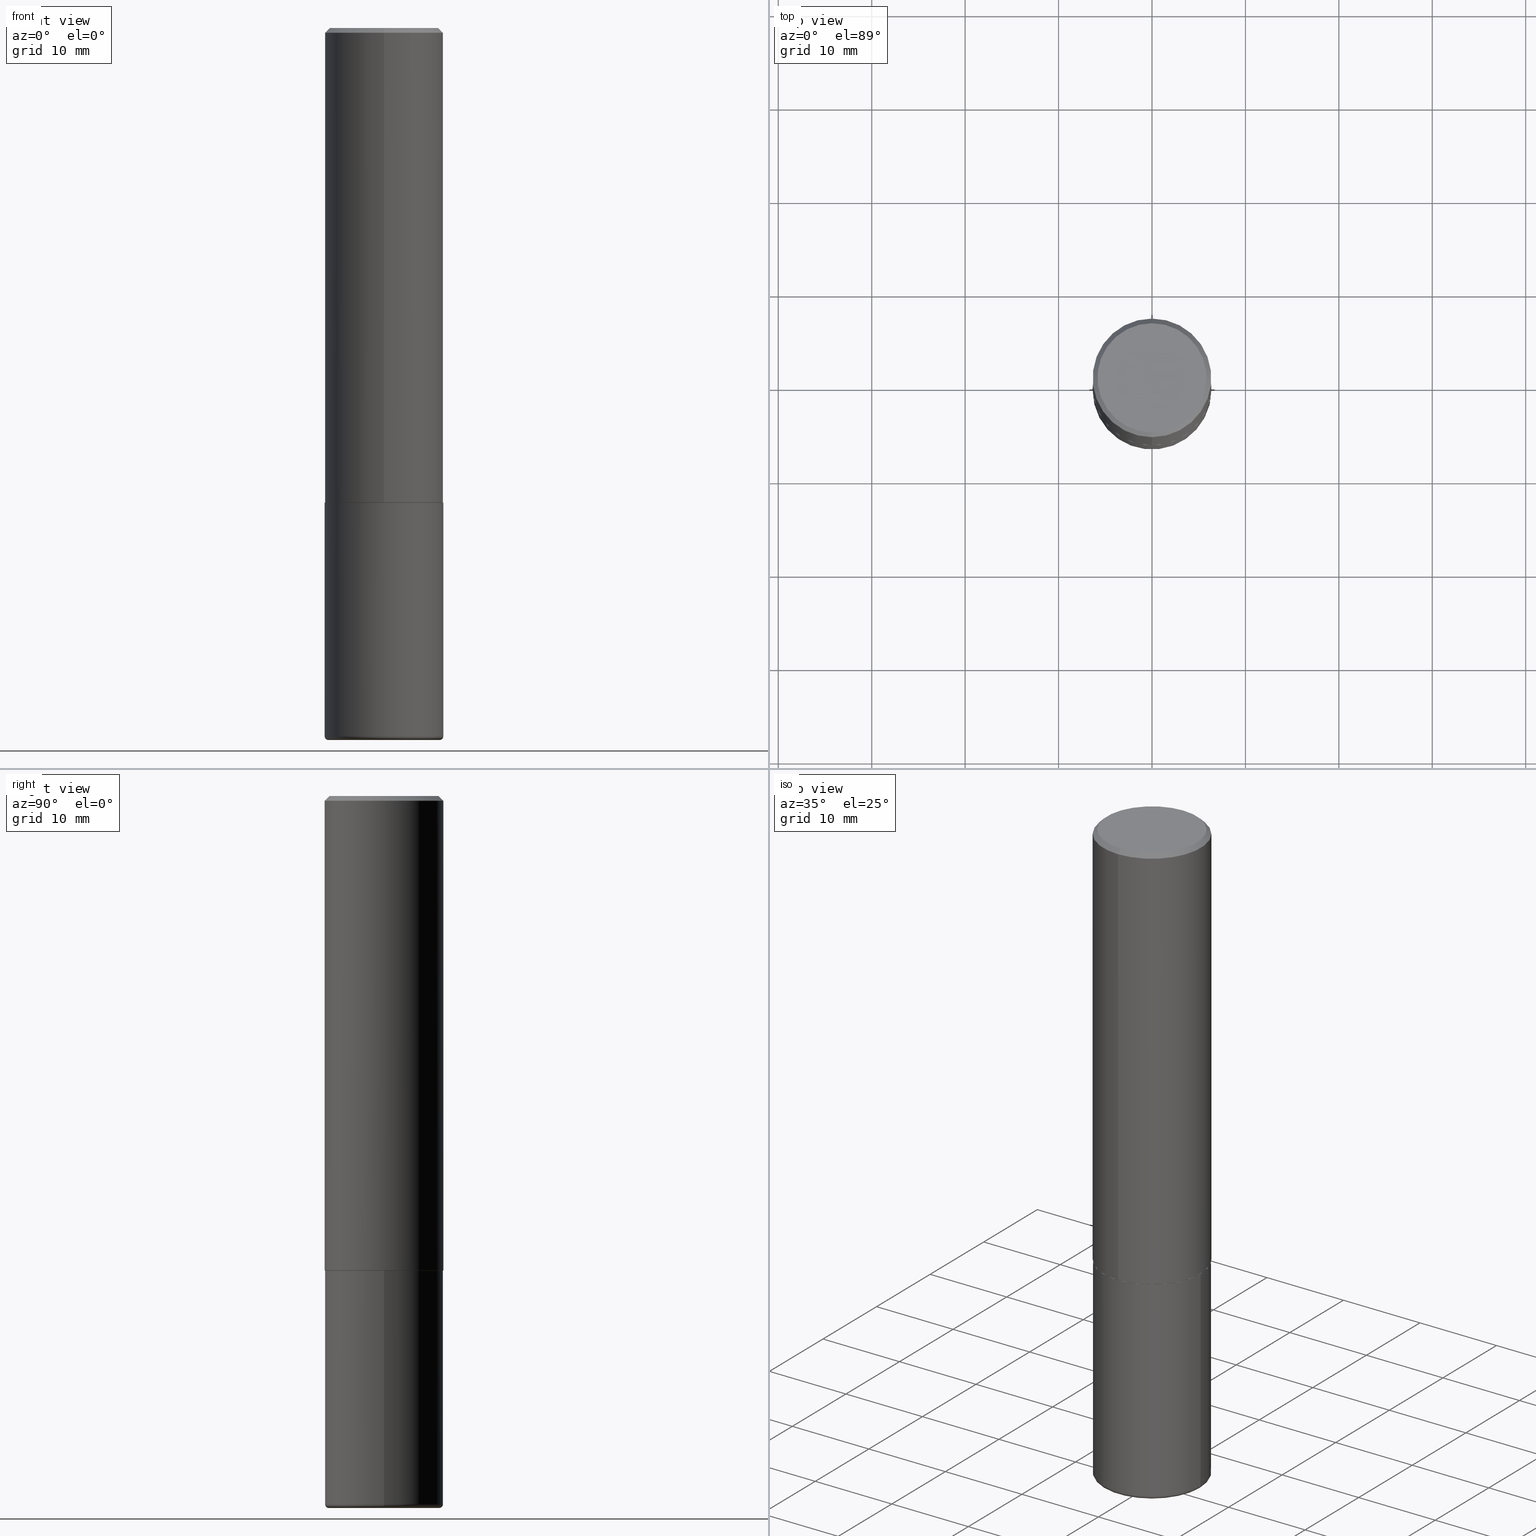
[diagram: canonical four-view strip — front | top / right | iso, engineering-drawing reading convention]
A machine part, canonical four-view strip (front | top / right | iso — engineering-drawing reading convention). The complete STEP part file that produces these views, byte-faithful:
ISO-10303-21;
HEADER;
FILE_DESCRIPTION (( 'STEP AP203' ),
    '1' );
FILE_NAME ('38174.STEP',
    '2024-03-02T16:56:12',
    ( '' ),
    ( '' ),
    'SwSTEP 2.0',
    'SolidWorks 2023',
    '' );
FILE_SCHEMA (( 'CONFIG_CONTROL_DESIGN' ));
ENDSEC;

DATA;
#1 = MANIFOLD_SOLID_BREP ( 'Body-Move/Copy2[1]', #149 ) ;
#2 = ADVANCED_FACE ( 'NONE', ( #15 ), #23, .T. ) ;
#3 = DIRECTION ( 'NONE',  ( -6.982962677686265922E-15, -1.000000000000000000, 3.483106191921935554E-15 ) ) ;
#4 = DIRECTION ( 'NONE',  ( 2.438088387897960049E-29, -3.491481338843145188E-15, -1.000000000000000000 ) ) ;
#5 = AXIS2_PLACEMENT_3D ( 'NONE', #352, #163, #3 ) ;
#6 = PERSON_AND_ORGANIZATION_ROLE ( 'classification_officer' ) ;
#7 = CARTESIAN_POINT ( 'NONE',  ( -1.646519519465166770E-15, -0.2299999999999998990, 8.535229244571821279E-16 ) ) ;
#8 = EDGE_CURVE ( 'NONE', #100, #45, #131, .T. ) ;
#9 = DIRECTION ( 'NONE',  ( 1.000000000000000000, 0.000000000000000000, 0.000000000000000000 ) ) ;
#10 = ORIENTED_EDGE ( 'NONE', *, *, #116, .F. ) ;
#11 = APPLICATION_PROTOCOL_DEFINITION ( 'international standard', 'config_control_design', 1994, #157 ) ;
#12 = ORIENTED_EDGE ( 'NONE', *, *, #339, .F. ) ;
#13 = APPROVAL ( #321, 'UNSPECIFIED' ) ;
#14 = CARTESIAN_POINT ( 'NONE',  ( -1.715124499442882299E-15, -0.2500000000000000555, -0.01999999999999918510 ) ) ;
#15 = FACE_OUTER_BOUND ( 'NONE', #277, .T. ) ;
#16 = EDGE_CURVE ( 'NONE', #184, #366, #210, .T. ) ;
#17 = PLANE ( 'NONE',  #227 ) ;
#18 = DIRECTION ( 'NONE',  ( -2.445468806185136597E-29, 3.491481338843145583E-15, 1.000000000000000000 ) ) ;
#19 = AXIS2_PLACEMENT_3D ( 'NONE', #128, #397, #96 ) ;
#20 = DIRECTION ( 'NONE',  ( -2.446592051190030557E-29, 3.489872788065002235E-15, 1.000000000000000000 ) ) ;
#21 = LENGTH_MEASURE_WITH_UNIT ( LENGTH_MEASURE( 0.02539999999999999897 ), #144 );
#22 = ADVANCED_FACE ( 'NONE', ( #40 ), #137, .T. ) ;
#23 = TOROIDAL_SURFACE ( 'NONE', #118, 0.2349999999999999867, 0.01500000000000012955 ) ;
#24 = VERTEX_POINT ( 'NONE', #209 ) ;
#25 = DIRECTION ( 'NONE',  ( 1.000000000000000000, -6.982962677686266711E-15, 4.883557194083113462E-29 ) ) ;
#26 = VECTOR ( 'NONE', #147, 39.37007874015748143 ) ;
#27 = AXIS2_PLACEMENT_3D ( 'NONE', #243, #375, #215 ) ;
#28 = CYLINDRICAL_SURFACE ( 'NONE', #378, 0.2500000000000000000 ) ;
#29 = CARTESIAN_POINT ( 'NONE',  ( 4.893184102380062236E-29, -6.979745576130006048E-15, -2.000000000000000444 ) ) ;
#30 = DIRECTION ( 'NONE',  ( -6.982962677686265133E-15, -1.000000000000000000, 3.291383124896702687E-15 ) ) ;
#31 = VERTEX_POINT ( 'NONE', #125 ) ;
#32 = PRODUCT_DEFINITION ( 'UNKNOWN', '', #317, #139 ) ;
#33 = ORIENTED_EDGE ( 'NONE', *, *, #77, .F. ) ;
#34 = AXIS2_PLACEMENT_3D ( 'NONE', #119, #251, #35 ) ;
#35 = DIRECTION ( 'NONE',  ( 1.000000000000000000, -6.982962677686266711E-15, 0.000000000000000000 ) ) ;
#36 = EDGE_LOOP ( 'NONE', ( #61, #188 ) ) ;
#37 = DIRECTION ( 'NONE',  ( -2.446592051190030557E-29, 3.489872788065002235E-15, 1.000000000000000000 ) ) ;
#38 = PERSON_AND_ORGANIZATION_ROLE ( 'creator' ) ;
#39 = ORIENTED_EDGE ( 'NONE', *, *, #151, .T. ) ;
#40 = FACE_OUTER_BOUND ( 'NONE', #247, .T. ) ;
#41 = AXIS2_PLACEMENT_3D ( 'NONE', #325, #301, #306 ) ;
#42 = DIRECTION ( 'NONE',  ( 6.982962677686265922E-15, 1.000000000000000000, -3.489872788065001841E-15 ) ) ;
#43 = DIRECTION ( 'NONE',  ( 1.000000000000000000, -6.982962677686266711E-15, 4.876176775795935793E-29 ) ) ;
#44 = APPROVAL_DATE_TIME ( #335, #185 ) ;
#45 = VERTEX_POINT ( 'NONE', #197 ) ;
#46 = FACE_OUTER_BOUND ( 'NONE', #55, .T. ) ;
#47 = AXIS2_PLACEMENT_3D ( 'NONE', #51, #20, #334 ) ;
#48 = DIRECTION ( 'NONE',  ( 2.446592051190030557E-29, -3.489872788065002235E-15, -1.000000000000000000 ) ) ;
#49 = CARTESIAN_POINT ( 'NONE',  ( 1.769251412042698169E-15, 0.2489999999999930325, -2.000000000000001332 ) ) ;
#50 = DIRECTION ( 'NONE',  ( 7.105427357601001859E-15, 1.000000000000000000, -3.491481338843145583E-15 ) ) ;
#51 = CARTESIAN_POINT ( 'NONE',  ( -1.244145472082398885E-45, 1.774676503711654950E-31, 5.085218320223195210E-17 ) ) ;
#52 = ORIENTED_EDGE ( 'NONE', *, *, #377, .T. ) ;
#53 = CIRCLE ( 'NONE', #114, 0.2500000000000002776 ) ;
#54 = AXIS2_PLACEMENT_3D ( 'NONE', #143, #337, #193 ) ;
#55 = EDGE_LOOP ( 'NONE', ( #176, #403, #179, #348 ) ) ;
#56 = DIRECTION ( 'NONE',  ( -2.445468806185136597E-29, 3.491481338843145583E-15, 1.000000000000000000 ) ) ;
#57 = PERSON_AND_ORGANIZATION ( #240, #73 ) ;
#58 = AXIS2_PLACEMENT_3D ( 'NONE', #29, #358, #281 ) ;
#59 = DIMENSIONAL_EXPONENTS ( 1.000000000000000000, 0.000000000000000000, 0.000000000000000000, 0.000000000000000000, 0.000000000000000000, 0.000000000000000000, 0.000000000000000000 ) ;
#60 = EDGE_CURVE ( 'NONE', #155, #122, #357, .T. ) ;
#61 = ORIENTED_EDGE ( 'NONE', *, *, #16, .F. ) ;
#62 = CALENDAR_DATE ( 2024, 2, 3 ) ;
#63 = ORIENTED_EDGE ( 'NONE', *, *, #387, .F. ) ;
#64 = EDGE_CURVE ( 'NONE', #326, #122, #53, .T. ) ;
#65 = CIRCLE ( 'NONE', #349, 0.2500000000000000000 ) ;
#66 = VECTOR ( 'NONE', #406, 39.37007874015748143 ) ;
#67 = PERSON_AND_ORGANIZATION ( #240, #73 ) ;
#68 = EDGE_LOOP ( 'NONE', ( #336, #200, #217, #10 ) ) ;
#69 = PERSON_AND_ORGANIZATION ( #240, #73 ) ;
#70 = ADVANCED_FACE ( 'NONE', ( #320 ), #28, .T. ) ;
#71 = DIRECTION ( 'NONE',  ( -2.445468806185136597E-29, 3.491481338843145583E-15, 1.000000000000000000 ) ) ;
#72 = VECTOR ( 'NONE', #148, 39.37007874015748143 ) ;
#73 = ORGANIZATION ( 'UNSPECIFIED', 'UNSPECIFIED', '' ) ;
#74 = COORDINATED_UNIVERSAL_TIME_OFFSET ( 5, 0, .BEHIND. ) ;
#75 = ORIENTED_EDGE ( 'NONE', *, *, #8, .F. ) ;
#76 = CARTESIAN_POINT ( 'NONE',  ( 1.606081415867840476E-15, 0.2299999999999998990, -7.772446496538342614E-16 ) ) ;
#77 = EDGE_CURVE ( 'NONE', #31, #24, #297, .T. ) ;
#78 = CC_DESIGN_PERSON_AND_ORGANIZATION_ASSIGNMENT ( #99, #182, ( #32 ) ) ;
#79 = AXIS2_PLACEMENT_3D ( 'NONE', #76, #409, #42 ) ;
#80 = ORIENTED_EDGE ( 'NONE', *, *, #248, .T. ) ;
#81 = CARTESIAN_POINT ( 'NONE',  ( -1.745740669421519346E-15, -0.2500000000000072164, -1.998999999999999444 ) ) ;
#82 = EDGE_CURVE ( 'NONE', #342, #326, #158, .T. ) ;
#83 = DIRECTION ( 'NONE',  ( -2.445468806185136597E-29, 3.491481338843145583E-15, 1.000000000000000000 ) ) ;
#84 = ORIENTED_EDGE ( 'NONE', *, *, #381, .T. ) ;
#85 = FACE_OUTER_BOUND ( 'NONE', #244, .T. ) ;
#86 = EDGE_CURVE ( 'NONE', #326, #322, #284, .T. ) ;
#87 = AXIS2_PLACEMENT_3D ( 'NONE', #109, #275, #412 ) ;
#88 = PERSON_AND_ORGANIZATION ( #240, #73 ) ;
#89 = EDGE_CURVE ( 'NONE', #373, #127, #65, .T. ) ;
#90 = CARTESIAN_POINT ( 'NONE',  ( -0.2349999999999999867, -8.752296367410553538E-15, -2.984999999999999876 ) ) ;
#91 = CARTESIAN_POINT ( 'NONE',  ( 0.2500000000000000000, -1.745740669421566678E-15, 1.219044193948983948E-29 ) ) ;
#92 = FACE_OUTER_BOUND ( 'NONE', #36, .T. ) ;
#93 = CC_DESIGN_SECURITY_CLASSIFICATION ( #262, ( #317 ) ) ;
#94 = DATE_TIME_ROLE ( 'classification_date' ) ;
#95 = ORIENTED_EDGE ( 'NONE', *, *, #230, .F. ) ;
#96 = DIRECTION ( 'NONE',  ( -6.982962677686265922E-15, -1.000000000000000000, 3.483106191921935554E-15 ) ) ;
#97 = CARTESIAN_POINT ( 'NONE',  ( 4.893184102380074708E-31, -6.979745576130022269E-17, -0.02000000000000005593 ) ) ;
#98 = CC_DESIGN_PERSON_AND_ORGANIZATION_ASSIGNMENT ( #69, #38, ( #317 ) ) ;
#99 = PERSON_AND_ORGANIZATION ( #240, #73 ) ;
#100 = VERTEX_POINT ( 'NONE', #7 ) ;
#101 = CARTESIAN_POINT ( 'NONE',  ( 4.893184102380062236E-29, -6.979745576130006048E-15, -2.000000000000000444 ) ) ;
#102 = DIRECTION ( 'NONE',  ( -2.446592051190030557E-29, 3.489872788065002235E-15, 1.000000000000000000 ) ) ;
#103 = CONICAL_SURFACE ( 'NONE', #54, 0.2489999999999999991, 0.7853981633974141952 ) ;
#104 = ORIENTED_EDGE ( 'NONE', *, *, #60, .F. ) ;
#105 = ADVANCED_FACE ( 'NONE', ( #307 ), #112, .T. ) ;
#106 = DIRECTION ( 'NONE',  ( 1.000000000000000000, -6.982962677686271444E-15, 0.000000000000000000 ) ) ;
#107 = AXIS2_PLACEMENT_3D ( 'NONE', #302, #102, #408 ) ;
#108 = VECTOR ( 'NONE', #303, 39.37007874015748143 ) ;
#109 = CARTESIAN_POINT ( 'NONE',  ( 0.000000000000000000, 0.000000000000000000, 0.000000000000000000 ) ) ;
#110 = CC_DESIGN_DATE_AND_TIME_ASSIGNMENT ( #190, #385, ( #32 ) ) ;
#111 = FACE_OUTER_BOUND ( 'NONE', #296, .T. ) ;
#112 = CYLINDRICAL_SURFACE ( 'NONE', #416, 0.2500000000000000000 ) ;
#113 = ORIENTED_EDGE ( 'NONE', *, *, #173, .F. ) ;
#114 = AXIS2_PLACEMENT_3D ( 'NONE', #393, #384, #171 ) ;
#115 = LOCAL_TIME ( 11, 56, 12.00000000000000000, #74 ) ;
#116 = EDGE_CURVE ( 'NONE', #122, #45, #338, .T. ) ;
#117 = CARTESIAN_POINT ( 'NONE',  ( -1.738757706743831162E-15, -0.2490000000000069658, -1.999999999999999778 ) ) ;
#118 = AXIS2_PLACEMENT_3D ( 'NONE', #364, #71, #206 ) ;
#119 = CARTESIAN_POINT ( 'NONE',  ( 4.890937612370273754E-29, -6.982962677686291954E-15, -2.000000000000000444 ) ) ;
#120 = LOCAL_TIME ( 11, 56, 12.00000000000000000, #359 ) ;
#121 = ORIENTED_EDGE ( 'NONE', *, *, #129, .F. ) ;
#122 = VERTEX_POINT ( 'NONE', #81 ) ;
#123 = DIRECTION ( 'NONE',  ( -4.937700262164378437E-15, -0.7071067811865208164, 0.7071067811865739960 ) ) ;
#124 = CARTESIAN_POINT ( 'NONE',  ( 0.000000000000000000, 0.000000000000000000, 0.000000000000000000 ) ) ;
#125 = CARTESIAN_POINT ( 'NONE',  ( 0.2500000000000000555, -1.216781246586835477E-14, -2.984999999999999876 ) ) ;
#126 = AXIS2_PLACEMENT_3D ( 'NONE', #333, #216, #223 ) ;
#127 = VERTEX_POINT ( 'NONE', #343 ) ;
#128 = CARTESIAN_POINT ( 'NONE',  ( 4.893184102380074708E-31, -6.979745576130022269E-17, -0.02000000000000005593 ) ) ;
#129 = EDGE_CURVE ( 'NONE', #342, #155, #180, .T. ) ;
#130 = MANIFOLD_SOLID_BREP ( 'Body-Move/Copy2[2]', #316 ) ;
#131 = LINE ( 'NONE', #14, #234 ) ;
#132 = FACE_OUTER_BOUND ( 'NONE', #345, .T. ) ;
#133 = DIRECTION ( 'NONE',  ( 1.000000000000000000, -6.982962677686270655E-15, 0.000000000000000000 ) ) ;
#134 = EDGE_CURVE ( 'NONE', #164, #100, #279, .T. ) ;
#135 = CARTESIAN_POINT ( 'NONE',  ( 1.776356839400276497E-15, 0.2499999999999933109, -1.999000000000000998 ) ) ;
#136 = LINE ( 'NONE', #142, #66 ) ;
#137 = CONICAL_SURFACE ( 'NONE', #107, 0.2489999999999999991, 0.7853981633974141952 ) ;
#138 = ADVANCED_FACE ( 'NONE', ( #92 ), #228, .T. ) ;
#139 = DESIGN_CONTEXT ( 'detailed design', #157, 'design' ) ;
#140 = DIRECTION ( 'NONE',  ( 2.438088387897960049E-29, -3.491481338843145188E-15, -1.000000000000000000 ) ) ;
#141 = DIRECTION ( 'NONE',  ( 1.000000000000000000, -6.982962677686271444E-15, 0.000000000000000000 ) ) ;
#142 = CARTESIAN_POINT ( 'NONE',  ( 1.745740669421566875E-15, 0.2499999999999999167, -0.02000000000000092676 ) ) ;
#143 = CARTESIAN_POINT ( 'NONE',  ( 4.893184102380062236E-29, -6.979745576130006048E-15, -2.000000000000000444 ) ) ;
#144 =( LENGTH_UNIT ( ) NAMED_UNIT ( * ) SI_UNIT ( $, .METRE. ) );
#145 =( CONVERSION_BASED_UNIT ( 'INCH', #21 ) LENGTH_UNIT ( ) NAMED_UNIT ( #59 ) );
#146 = ADVANCED_BREP_SHAPE_REPRESENTATION ( '38174', ( #1, #130, #252 ), #269 ) ;
#147 = DIRECTION ( 'NONE',  ( -2.446592051190030838E-29, 3.489872788065001841E-15, 1.000000000000000000 ) ) ;
#148 = DIRECTION ( 'NONE',  ( -2.446592051190030838E-29, 3.489872788065001841E-15, 1.000000000000000000 ) ) ;
#149 = CLOSED_SHELL ( 'NONE', ( #105, #2, #362, #70, #292, #138 ) ) ;
#150 = CIRCLE ( 'NONE', #165, 0.2500000000000002776 ) ;
#151 = EDGE_CURVE ( 'NONE', #366, #24, #261, .T. ) ;
#152 = UNCERTAINTY_MEASURE_WITH_UNIT (LENGTH_MEASURE( 1.000000000000000082E-05 ), #145, 'distance_accuracy_value', 'NONE');
#153 = EDGE_LOOP ( 'NONE', ( #390, #52, #255, #95 ) ) ;
#154 = DIRECTION ( 'NONE',  ( 1.000000000000000000, -6.982962677686266711E-15, 0.000000000000000000 ) ) ;
#155 = VERTEX_POINT ( 'NONE', #191 ) ;
#156 = PRODUCT_DEFINITION_SHAPE ( 'NONE', 'NONE',  #32 ) ;
#157 = APPLICATION_CONTEXT ( 'configuration controlled 3d designs of mechanical parts and assemblies' ) ;
#158 = LINE ( 'NONE', #49, #249 ) ;
#159 = CALENDAR_DATE ( 2024, 2, 3 ) ;
#160 = AXIS2_PLACEMENT_3D ( 'NONE', #314, #56, #25 ) ;
#161 = DIRECTION ( 'NONE',  ( -2.445468806185136597E-29, 3.491481338843145583E-15, 1.000000000000000000 ) ) ;
#162 = EDGE_LOOP ( 'NONE', ( #413, #203 ) ) ;
#163 = DIRECTION ( 'NONE',  ( -2.446592051190030557E-29, 3.489872788065002235E-15, 1.000000000000000000 ) ) ;
#164 = VERTEX_POINT ( 'NONE', #285 ) ;
#165 = AXIS2_PLACEMENT_3D ( 'NONE', #256, #37, #238 ) ;
#166 = DIRECTION ( 'NONE',  ( -6.982962677686265922E-15, -1.000000000000000000, 3.489872788065002235E-15 ) ) ;
#167 = COORDINATED_UNIVERSAL_TIME_OFFSET ( 5, 0, .BEHIND. ) ;
#168 = ORIENTED_EDGE ( 'NONE', *, *, #89, .F. ) ;
#169 = EDGE_LOOP ( 'NONE', ( #229, #294, #268, #172 ) ) ;
#170 = PERSON_AND_ORGANIZATION_ROLE ( 'design_owner' ) ;
#171 = DIRECTION ( 'NONE',  ( -6.982962677686265922E-15, -1.000000000000000000, 3.278217592397112312E-15 ) ) ;
#172 = ORIENTED_EDGE ( 'NONE', *, *, #356, .F. ) ;
#173 = EDGE_CURVE ( 'NONE', #31, #373, #389, .T. ) ;
#174 = CARTESIAN_POINT ( 'NONE',  ( 4.890937612370273754E-29, -6.982962677686291954E-15, -2.000000000000000444 ) ) ;
#175 = CIRCLE ( 'NONE', #47, 0.2299999999999998990 ) ;
#176 = ORIENTED_EDGE ( 'NONE', *, *, #82, .F. ) ;
#177 = EDGE_CURVE ( 'NONE', #24, #127, #372, .T. ) ;
#178 = ORIENTED_EDGE ( 'NONE', *, *, #214, .T. ) ;
#179 = ORIENTED_EDGE ( 'NONE', *, *, #60, .T. ) ;
#180 = CIRCLE ( 'NONE', #221, 0.2489999999999999991 ) ;
#181 = AXIS2_PLACEMENT_3D ( 'NONE', #383, #220, #106 ) ;
#182 = PERSON_AND_ORGANIZATION_ROLE ( 'creator' ) ;
#183 = CALENDAR_DATE ( 2024, 2, 3 ) ;
#184 = VERTEX_POINT ( 'NONE', #400 ) ;
#185 = APPROVAL ( #401, 'UNSPECIFIED' ) ;
#186 = VECTOR ( 'NONE', #123, 39.37007874015748854 ) ;
#187 = CC_DESIGN_APPROVAL ( #192, ( #317 ) ) ;
#188 = ORIENTED_EDGE ( 'NONE', *, *, #377, .F. ) ;
#189 = AXIS2_PLACEMENT_3D ( 'NONE', #211, #18, #133 ) ;
#190 = DATE_AND_TIME ( #159, #115 ) ;
#191 = CARTESIAN_POINT ( 'NONE',  ( -1.738757706743831162E-15, -0.2490000000000069658, -1.999999999999999778 ) ) ;
#192 = APPROVAL ( #353, 'UNSPECIFIED' ) ;
#193 = DIRECTION ( 'NONE',  ( -6.982962677686265133E-15, -1.000000000000000000, 3.291383124896702687E-15 ) ) ;
#194 = DATE_AND_TIME ( #62, #120 ) ;
#195 = AXIS2_PLACEMENT_3D ( 'NONE', #396, #219, #282 ) ;
#196 = APPROVAL_PERSON_ORGANIZATION ( #266, #185, #270 ) ;
#197 = CARTESIAN_POINT ( 'NONE',  ( -1.715124499442882299E-15, -0.2500000000000000555, -0.01999999999999918510 ) ) ;
#198 = CARTESIAN_POINT ( 'NONE',  ( 7.336406418555409790E-29, -1.047444401652943635E-14, -3.000000000000000444 ) ) ;
#199 = FACE_OUTER_BOUND ( 'NONE', #68, .T. ) ;
#200 = ORIENTED_EDGE ( 'NONE', *, *, #86, .T. ) ;
#201 = ORIENTED_EDGE ( 'NONE', *, *, #16, .T. ) ;
#202 = AXIS2_PLACEMENT_3D ( 'NONE', #90, #50, #218 ) ;
#203 = ORIENTED_EDGE ( 'NONE', *, *, #356, .T. ) ;
#204 = PRODUCT_RELATED_PRODUCT_CATEGORY ( 'detail', '', ( #414 ) ) ;
#205 = PLANE ( 'NONE',  #126 ) ;
#206 = DIRECTION ( 'NONE',  ( 1.000000000000000000, -6.982962677686266711E-15, 4.883557194083113462E-29 ) ) ;
#207 = FACE_OUTER_BOUND ( 'NONE', #153, .T. ) ;
#208 = APPROVAL_DATE_TIME ( #391, #13 ) ;
#209 = CARTESIAN_POINT ( 'NONE',  ( -0.2500000000000000555, -8.645714957046537626E-15, -2.984999999999999876 ) ) ;
#210 = CIRCLE ( 'NONE', #404, 0.2349999999999999867 ) ;
#211 = CARTESIAN_POINT ( 'NONE',  ( 7.299724386462632472E-29, -1.042207179644678967E-14, -2.984999999999999876 ) ) ;
#212 = CARTESIAN_POINT ( 'NONE',  ( 0.000000000000000000, 0.000000000000000000, 0.000000000000000000 ) ) ;
#213 = COORDINATED_UNIVERSAL_TIME_OFFSET ( 5, 0, .BEHIND. ) ;
#214 = EDGE_CURVE ( 'NONE', #100, #164, #175, .T. ) ;
#215 = DIRECTION ( 'NONE',  ( 6.982962677686265922E-15, 1.000000000000000000, -3.483106191921935554E-15 ) ) ;
#216 = DIRECTION ( 'NONE',  ( -2.446592051190030277E-29, 3.489872788065001841E-15, 1.000000000000000000 ) ) ;
#217 = ORIENTED_EDGE ( 'NONE', *, *, #347, .F. ) ;
#218 = DIRECTION ( 'NONE',  ( -1.000000000000000000, 7.105427357600986081E-15, 0.000000000000000000 ) ) ;
#219 = DIRECTION ( 'NONE',  ( -2.445468806185136597E-29, 3.491481338843145583E-15, 1.000000000000000000 ) ) ;
#220 = DIRECTION ( 'NONE',  ( -2.445468806185136597E-29, 3.491481338843145583E-15, 1.000000000000000000 ) ) ;
#221 = AXIS2_PLACEMENT_3D ( 'NONE', #101, #233, #30 ) ;
#222 = CIRCLE ( 'NONE', #323, 0.01500000000000014690 ) ;
#223 = DIRECTION ( 'NONE',  ( -6.982962677686265922E-15, -1.000000000000000000, 3.489872788065001841E-15 ) ) ;
#224 = ORIENTED_EDGE ( 'NONE', *, *, #134, .T. ) ;
#225 = PERSON_AND_ORGANIZATION_ROLE ( 'design_supplier' ) ;
#226 = APPROVAL_ROLE ( '' ) ;
#227 = AXIS2_PLACEMENT_3D ( 'NONE', #399, #140, #394 ) ;
#228 = PLANE ( 'NONE',  #386 ) ;
#229 = ORIENTED_EDGE ( 'NONE', *, *, #177, .F. ) ;
#230 = EDGE_CURVE ( 'NONE', #24, #31, #371, .T. ) ;
#231 = ORIENTED_EDGE ( 'NONE', *, *, #8, .T. ) ;
#232 = DIRECTION ( 'NONE',  ( 6.982962677686265922E-15, 1.000000000000000000, -3.483106191921935554E-15 ) ) ;
#233 = DIRECTION ( 'NONE',  ( -2.446592051190030557E-29, 3.489872788065002235E-15, 1.000000000000000000 ) ) ;
#234 = VECTOR ( 'NONE', #327, 39.37007874015748143 ) ;
#235 = DIRECTION ( 'NONE',  ( -2.446592051190030557E-29, 3.489872788065002235E-15, 1.000000000000000000 ) ) ;
#236 = CARTESIAN_POINT ( 'NONE',  ( 7.336406418555409790E-29, -1.047444401652943635E-14, -3.000000000000000444 ) ) ;
#237 = COORDINATED_UNIVERSAL_TIME_OFFSET ( 5, 0, .BEHIND. ) ;
#238 = DIRECTION ( 'NONE',  ( -6.982962677686265922E-15, -1.000000000000000000, 3.278217592397112312E-15 ) ) ;
#239 = EDGE_LOOP ( 'NONE', ( #75, #319, #80, #259 ) ) ;
#240 = PERSON ( 'UNSPECIFIED', 'UNSPECIFIED', 'UNSPECIFIED', ('UNSPECIFIED'), ('UNSPECIFIED'), ('UNSPECIFIED') ) ;
#241 = AXIS2_PLACEMENT_3D ( 'NONE', #97, #48, #232 ) ;
#242 = ORIENTED_EDGE ( 'NONE', *, *, #77, .T. ) ;
#243 = CARTESIAN_POINT ( 'NONE',  ( 4.893184102380074708E-31, -6.979745576130022269E-17, -0.02000000000000005593 ) ) ;
#244 = EDGE_LOOP ( 'NONE', ( #312, #287, #245, #12 ) ) ;
#245 = ORIENTED_EDGE ( 'NONE', *, *, #116, .T. ) ;
#246 = LOCAL_TIME ( 11, 56, 12.00000000000000000, #237 ) ;
#247 = EDGE_LOOP ( 'NONE', ( #84, #263, #313, #104 ) ) ;
#248 = EDGE_CURVE ( 'NONE', #164, #322, #136, .T. ) ;
#249 = VECTOR ( 'NONE', #418, 39.37007874015748854 ) ;
#250 = SECURITY_CLASSIFICATION_LEVEL ( 'unclassified' ) ;
#251 = DIRECTION ( 'NONE',  ( -2.445468806185136597E-29, 3.491481338843145583E-15, 1.000000000000000000 ) ) ;
#252 = AXIS2_PLACEMENT_3D ( 'NONE', #212, #341, #9 ) ;
#253 = CONICAL_SURFACE ( 'NONE', #241, 0.2500000000000000000, 0.7853981633974479459 ) ;
#254 = DIRECTION ( 'NONE',  ( -6.982962677686266711E-15, -1.000000000000000000, 3.491481338843145583E-15 ) ) ;
#255 = ORIENTED_EDGE ( 'NONE', *, *, #387, .T. ) ;
#256 = CARTESIAN_POINT ( 'NONE',  ( 4.890737510328871163E-29, -6.976255703341939282E-15, -1.999000000000000110 ) ) ;
#257 = APPLICATION_PROTOCOL_DEFINITION ( 'international standard', 'config_control_design', 1994, #290 ) ;
#258 = DIRECTION ( 'NONE',  ( -2.445468806185136877E-29, 3.491481338843145188E-15, 1.000000000000000000 ) ) ;
#259 = ORIENTED_EDGE ( 'NONE', *, *, #339, .T. ) ;
#260 = DIRECTION ( 'NONE',  ( 1.000000000000000000, -6.982962677686266711E-15, 4.876176775795935793E-29 ) ) ;
#261 = CIRCLE ( 'NONE', #202, 0.01500000000000014690 ) ;
#262 = SECURITY_CLASSIFICATION ( '', '', #250 ) ;
#263 = ORIENTED_EDGE ( 'NONE', *, *, #82, .T. ) ;
#264 = EDGE_LOOP ( 'NONE', ( #242, #379, #168, #113 ) ) ;
#265 = PERSON_AND_ORGANIZATION ( #240, #73 ) ;
#266 = PERSON_AND_ORGANIZATION ( #240, #73 ) ;
#267 = CARTESIAN_POINT ( 'NONE',  ( -1.244145472082398885E-45, 1.774676503711654950E-31, 5.085218320223195210E-17 ) ) ;
#268 = ORIENTED_EDGE ( 'NONE', *, *, #173, .T. ) ;
#269 =( GEOMETRIC_REPRESENTATION_CONTEXT ( 3 ) GLOBAL_UNCERTAINTY_ASSIGNED_CONTEXT ( ( #152 ) ) GLOBAL_UNIT_ASSIGNED_CONTEXT ( ( #145, #331, #295 ) ) REPRESENTATION_CONTEXT ( 'NONE', 'WORKASPACE' ) );
#270 = APPROVAL_ROLE ( '' ) ;
#271 = DIRECTION ( 'NONE',  ( -2.445468806185136597E-29, 3.491481338843145583E-15, 1.000000000000000000 ) ) ;
#272 = AXIS2_PLACEMENT_3D ( 'NONE', #267, #235, #166 ) ;
#273 = DATE_AND_TIME ( #183, #310 ) ;
#274 = APPROVAL_PERSON_ORGANIZATION ( #88, #192, #226 ) ;
#275 = DIRECTION ( 'NONE',  ( -2.446592051190030557E-29, 3.489872788065002235E-15, 1.000000000000000000 ) ) ;
#276 = ADVANCED_FACE ( 'NONE', ( #340 ), #253, .T. ) ;
#277 = EDGE_LOOP ( 'NONE', ( #201, #39, #33, #63 ) ) ;
#278 = CARTESIAN_POINT ( 'NONE',  ( -1.745740669421567467E-15, -0.2500000000000001110, 8.724681970162509532E-16 ) ) ;
#279 = CIRCLE ( 'NONE', #272, 0.2299999999999998990 ) ;
#280 = CC_DESIGN_APPROVAL ( #13, ( #262 ) ) ;
#281 = DIRECTION ( 'NONE',  ( -6.982962677686265133E-15, -1.000000000000000000, 3.291383124896702687E-15 ) ) ;
#282 = DIRECTION ( 'NONE',  ( 1.000000000000000000, -6.982962677686270655E-15, 0.000000000000000000 ) ) ;
#283 = ADVANCED_FACE ( 'NONE', ( #365 ), #369, .F. ) ;
#284 = LINE ( 'NONE', #300, #72 ) ;
#285 = CARTESIAN_POINT ( 'NONE',  ( 1.675911042644703774E-15, 0.2299999999999998990, -7.518185580527182730E-16 ) ) ;
#286 = PERSON_AND_ORGANIZATION ( #240, #73 ) ;
#287 = ORIENTED_EDGE ( 'NONE', *, *, #64, .T. ) ;
#288 = CARTESIAN_POINT ( 'NONE',  ( 0.2500000000000000000, -8.728703347107858632E-15, -2.000000000000000444 ) ) ;
#289 = CONICAL_SURFACE ( 'NONE', #27, 0.2500000000000000000, 0.7853981633974479459 ) ;
#290 = APPLICATION_CONTEXT ( 'configuration controlled 3d designs of mechanical parts and assemblies' ) ;
#291 = CARTESIAN_POINT ( 'NONE',  ( 0.2349999999999999867, -1.206306802570306140E-14, -2.984999999999999876 ) ) ;
#292 = ADVANCED_FACE ( 'NONE', ( #207 ), #299, .T. ) ;
#293 = CALENDAR_DATE ( 2024, 2, 3 ) ;
#294 = ORIENTED_EDGE ( 'NONE', *, *, #230, .T. ) ;
#295 =( NAMED_UNIT ( * ) SI_UNIT ( $, .STERADIAN. ) SOLID_ANGLE_UNIT ( ) );
#296 = EDGE_LOOP ( 'NONE', ( #355, #231, #380, #351 ) ) ;
#297 = CIRCLE ( 'NONE', #195, 0.2500000000000000000 ) ;
#298 = ADVANCED_FACE ( 'NONE', ( #85 ), #315, .T. ) ;
#299 = TOROIDAL_SURFACE ( 'NONE', #160, 0.2349999999999999867, 0.01500000000000012955 ) ;
#300 = CARTESIAN_POINT ( 'NONE',  ( 1.776356839400251254E-15, 0.2500000000000001110, -8.724681970162509532E-16 ) ) ;
#301 = DIRECTION ( 'NONE',  ( -2.446592051190030557E-29, 3.489872788065002235E-15, 1.000000000000000000 ) ) ;
#302 = CARTESIAN_POINT ( 'NONE',  ( 4.893184102380062236E-29, -6.979745576130006048E-15, -2.000000000000000444 ) ) ;
#303 = DIRECTION ( 'NONE',  ( -2.445468806185136877E-29, 3.491481338843145188E-15, 1.000000000000000000 ) ) ;
#304 = ADVANCED_FACE ( 'NONE', ( #111 ), #289, .T. ) ;
#305 = CC_DESIGN_APPROVAL ( #185, ( #32 ) ) ;
#306 = DIRECTION ( 'NONE',  ( -6.982962677686266711E-15, -1.000000000000000000, 3.489872788065002235E-15 ) ) ;
#307 = FACE_OUTER_BOUND ( 'NONE', #264, .T. ) ;
#308 = ORIENTED_EDGE ( 'NONE', *, *, #381, .F. ) ;
#309 = CC_DESIGN_PERSON_AND_ORGANIZATION_ASSIGNMENT ( #265, #225, ( #317 ) ) ;
#310 = LOCAL_TIME ( 11, 56, 12.00000000000000000, #213 ) ;
#311 = SHAPE_DEFINITION_REPRESENTATION ( #156, #146 ) ;
#312 = ORIENTED_EDGE ( 'NONE', *, *, #86, .F. ) ;
#313 = ORIENTED_EDGE ( 'NONE', *, *, #415, .F. ) ;
#314 = CARTESIAN_POINT ( 'NONE',  ( 7.299724386462632472E-29, -1.042207179644678967E-14, -2.984999999999999876 ) ) ;
#315 = CYLINDRICAL_SURFACE ( 'NONE', #87, 0.2500000000000001110 ) ;
#316 = CLOSED_SHELL ( 'NONE', ( #22, #367, #304, #276, #298, #328, #344, #283 ) ) ;
#317 = PRODUCT_DEFINITION_FORMATION_WITH_SPECIFIED_SOURCE ( 'ANY', '', #414, .NOT_KNOWN. ) ;
#318 = APPROVAL_ROLE ( '' ) ;
#319 = ORIENTED_EDGE ( 'NONE', *, *, #134, .F. ) ;
#320 = FACE_OUTER_BOUND ( 'NONE', #169, .T. ) ;
#321 = APPROVAL_STATUS ( 'not_yet_approved' ) ;
#322 = VERTEX_POINT ( 'NONE', #368 ) ;
#323 = AXIS2_PLACEMENT_3D ( 'NONE', #291, #254, #382 ) ;
#324 = APPROVAL_DATE_TIME ( #273, #192 ) ;
#325 = CARTESIAN_POINT ( 'NONE',  ( 0.000000000000000000, 0.000000000000000000, 0.000000000000000000 ) ) ;
#326 = VERTEX_POINT ( 'NONE', #135 ) ;
#327 = DIRECTION ( 'NONE',  ( -4.851104656540961908E-15, -0.7071067811865496822, -0.7071067811865453523 ) ) ;
#328 = ADVANCED_FACE ( 'NONE', ( #46 ), #103, .T. ) ;
#329 = CARTESIAN_POINT ( 'NONE',  ( 1.772804125721499264E-15, 0.2489999999999930325, -2.000000000000001332 ) ) ;
#330 = CIRCLE ( 'NONE', #58, 0.2489999999999999991 ) ;
#331 =( NAMED_UNIT ( * ) PLANE_ANGLE_UNIT ( ) SI_UNIT ( $, .RADIAN. ) );
#332 = FACE_OUTER_BOUND ( 'NONE', #162, .T. ) ;
#333 = CARTESIAN_POINT ( 'NONE',  ( 4.893184102380062236E-29, -6.979745576130006048E-15, -2.000000000000000444 ) ) ;
#334 = DIRECTION ( 'NONE',  ( -6.982962677686265922E-15, -1.000000000000000000, 3.489872788065002235E-15 ) ) ;
#335 = DATE_AND_TIME ( #402, #246 ) ;
#336 = ORIENTED_EDGE ( 'NONE', *, *, #415, .T. ) ;
#337 = DIRECTION ( 'NONE',  ( -2.446592051190030557E-29, 3.489872788065002235E-15, 1.000000000000000000 ) ) ;
#338 = LINE ( 'NONE', #278, #26 ) ;
#339 = EDGE_CURVE ( 'NONE', #322, #45, #395, .T. ) ;
#340 = FACE_OUTER_BOUND ( 'NONE', #239, .T. ) ;
#341 = DIRECTION ( 'NONE',  ( 0.000000000000000000, 0.000000000000000000, 1.000000000000000000 ) ) ;
#342 = VERTEX_POINT ( 'NONE', #329 ) ;
#343 = CARTESIAN_POINT ( 'NONE',  ( -0.2500000000000000000, -6.926160397666289558E-15, -2.000000000000000444 ) ) ;
#344 = ADVANCED_FACE ( 'NONE', ( #132 ), #205, .F. ) ;
#345 = EDGE_LOOP ( 'NONE', ( #308, #121 ) ) ;
#346 = CIRCLE ( 'NONE', #181, 0.2349999999999999867 ) ;
#347 = EDGE_CURVE ( 'NONE', #45, #322, #350, .T. ) ;
#348 = ORIENTED_EDGE ( 'NONE', *, *, #64, .F. ) ;
#349 = AXIS2_PLACEMENT_3D ( 'NONE', #174, #407, #154 ) ;
#350 = CIRCLE ( 'NONE', #5, 0.2500000000000000000 ) ;
#351 = ORIENTED_EDGE ( 'NONE', *, *, #248, .F. ) ;
#352 = CARTESIAN_POINT ( 'NONE',  ( 4.893184102380074708E-31, -6.979745576130022269E-17, -0.02000000000000005593 ) ) ;
#353 = APPROVAL_STATUS ( 'not_yet_approved' ) ;
#354 = EDGE_LOOP ( 'NONE', ( #224, #178 ) ) ;
#355 = ORIENTED_EDGE ( 'NONE', *, *, #214, .F. ) ;
#356 = EDGE_CURVE ( 'NONE', #127, #373, #410, .T. ) ;
#357 = LINE ( 'NONE', #117, #186 ) ;
#358 = DIRECTION ( 'NONE',  ( -2.446592051190030557E-29, 3.489872788065002235E-15, 1.000000000000000000 ) ) ;
#359 = COORDINATED_UNIVERSAL_TIME_OFFSET ( 5, 0, .BEHIND. ) ;
#360 = APPROVAL_PERSON_ORGANIZATION ( #57, #13, #318 ) ;
#361 = CARTESIAN_POINT ( 'NONE',  ( -0.2349999999999999867, -8.725191772269868924E-15, -3.000000000000000444 ) ) ;
#362 = ADVANCED_FACE ( 'NONE', ( #332 ), #17, .F. ) ;
#363 = CYLINDRICAL_SURFACE ( 'NONE', #41, 0.2500000000000001110 ) ;
#364 = CARTESIAN_POINT ( 'NONE',  ( 7.299724386462632472E-29, -1.042207179644678967E-14, -2.984999999999999876 ) ) ;
#365 = FACE_OUTER_BOUND ( 'NONE', #354, .T. ) ;
#366 = VERTEX_POINT ( 'NONE', #361 ) ;
#367 = ADVANCED_FACE ( 'NONE', ( #199 ), #363, .T. ) ;
#368 = CARTESIAN_POINT ( 'NONE',  ( 1.745740669421566875E-15, 0.2499999999999999167, -0.02000000000000092676 ) ) ;
#369 = PLANE ( 'NONE',  #79 ) ;
#370 = CARTESIAN_POINT ( 'NONE',  ( -0.2500000000000000000, 1.776356839400250465E-15, -1.229733772563726445E-29 ) ) ;
#371 = CIRCLE ( 'NONE', #189, 0.2500000000000000000 ) ;
#372 = LINE ( 'NONE', #370, #108 ) ;
#373 = VERTEX_POINT ( 'NONE', #288 ) ;
#374 = CC_DESIGN_PERSON_AND_ORGANIZATION_ASSIGNMENT ( #286, #6, ( #262 ) ) ;
#375 = DIRECTION ( 'NONE',  ( 2.446592051190030557E-29, -3.489872788065002235E-15, -1.000000000000000000 ) ) ;
#376 = CARTESIAN_POINT ( 'NONE',  ( 0.000000000000000000, 0.000000000000000000, 0.000000000000000000 ) ) ;
#377 = EDGE_CURVE ( 'NONE', #366, #184, #346, .T. ) ;
#378 = AXIS2_PLACEMENT_3D ( 'NONE', #124, #161, #260 ) ;
#379 = ORIENTED_EDGE ( 'NONE', *, *, #177, .T. ) ;
#380 = ORIENTED_EDGE ( 'NONE', *, *, #347, .T. ) ;
#381 = EDGE_CURVE ( 'NONE', #155, #342, #330, .T. ) ;
#382 = DIRECTION ( 'NONE',  ( 1.000000000000000000, -6.982962677686199657E-15, 0.000000000000000000 ) ) ;
#383 = CARTESIAN_POINT ( 'NONE',  ( 7.336406418555409790E-29, -1.047444401652943635E-14, -3.000000000000000444 ) ) ;
#384 = DIRECTION ( 'NONE',  ( -2.446592051190030557E-29, 3.489872788065002235E-15, 1.000000000000000000 ) ) ;
#385 = DATE_TIME_ROLE ( 'creation_date' ) ;
#386 = AXIS2_PLACEMENT_3D ( 'NONE', #198, #4, #388 ) ;
#387 = EDGE_CURVE ( 'NONE', #184, #31, #222, .T. ) ;
#388 = DIRECTION ( 'NONE',  ( -1.000000000000000000, 6.982962677686265922E-15, -4.876176775795935793E-29 ) ) ;
#389 = LINE ( 'NONE', #91, #405 ) ;
#390 = ORIENTED_EDGE ( 'NONE', *, *, #151, .F. ) ;
#391 = DATE_AND_TIME ( #293, #417 ) ;
#392 = MECHANICAL_CONTEXT ( 'NONE', #290, 'mechanical' ) ;
#393 = CARTESIAN_POINT ( 'NONE',  ( 4.890737510328871163E-29, -6.976255703341939282E-15, -1.999000000000000110 ) ) ;
#394 = DIRECTION ( 'NONE',  ( -1.000000000000000000, 6.982962677686265922E-15, -4.876176775795935793E-29 ) ) ;
#395 = CIRCLE ( 'NONE', #19, 0.2500000000000000000 ) ;
#396 = CARTESIAN_POINT ( 'NONE',  ( 7.299724386462632472E-29, -1.042207179644678967E-14, -2.984999999999999876 ) ) ;
#397 = DIRECTION ( 'NONE',  ( -2.446592051190030557E-29, 3.489872788065002235E-15, 1.000000000000000000 ) ) ;
#398 = CC_DESIGN_DATE_AND_TIME_ASSIGNMENT ( #194, #94, ( #262 ) ) ;
#399 = CARTESIAN_POINT ( 'NONE',  ( 4.890937612370273754E-29, -6.982962677686291954E-15, -2.000000000000000444 ) ) ;
#400 = CARTESIAN_POINT ( 'NONE',  ( 0.2349999999999999867, -1.211544024578571124E-14, -3.000000000000000444 ) ) ;
#401 = APPROVAL_STATUS ( 'not_yet_approved' ) ;
#402 = CALENDAR_DATE ( 2024, 2, 3 ) ;
#403 = ORIENTED_EDGE ( 'NONE', *, *, #129, .T. ) ;
#404 = AXIS2_PLACEMENT_3D ( 'NONE', #236, #271, #141 ) ;
#405 = VECTOR ( 'NONE', #258, 39.37007874015748143 ) ;
#406 = DIRECTION ( 'NONE',  ( 4.937700262164545676E-15, 0.7071067811865447972, -0.7071067811865502373 ) ) ;
#407 = DIRECTION ( 'NONE',  ( -2.445468806185136597E-29, 3.491481338843145583E-15, 1.000000000000000000 ) ) ;
#408 = DIRECTION ( 'NONE',  ( -6.982962677686265133E-15, -1.000000000000000000, 3.291383124896702687E-15 ) ) ;
#409 = DIRECTION ( 'NONE',  ( 2.446592051190030277E-29, -3.489872788065001841E-15, -1.000000000000000000 ) ) ;
#410 = CIRCLE ( 'NONE', #34, 0.2500000000000000000 ) ;
#411 = CC_DESIGN_PERSON_AND_ORGANIZATION_ASSIGNMENT ( #67, #170, ( #414 ) ) ;
#412 = DIRECTION ( 'NONE',  ( -6.982962677686266711E-15, -1.000000000000000000, 3.489872788065002235E-15 ) ) ;
#413 = ORIENTED_EDGE ( 'NONE', *, *, #89, .T. ) ;
#414 = PRODUCT ( '38174', '38174', '', ( #392 ) ) ;
#415 = EDGE_CURVE ( 'NONE', #122, #326, #150, .T. ) ;
#416 = AXIS2_PLACEMENT_3D ( 'NONE', #376, #83, #43 ) ;
#417 = LOCAL_TIME ( 11, 56, 12.00000000000000000, #167 ) ;
#418 = DIRECTION ( 'NONE',  ( 5.024295867787889629E-15, 0.7071067811865257013, 0.7071067811865691111 ) ) ;
ENDSEC;
END-ISO-10303-21;
